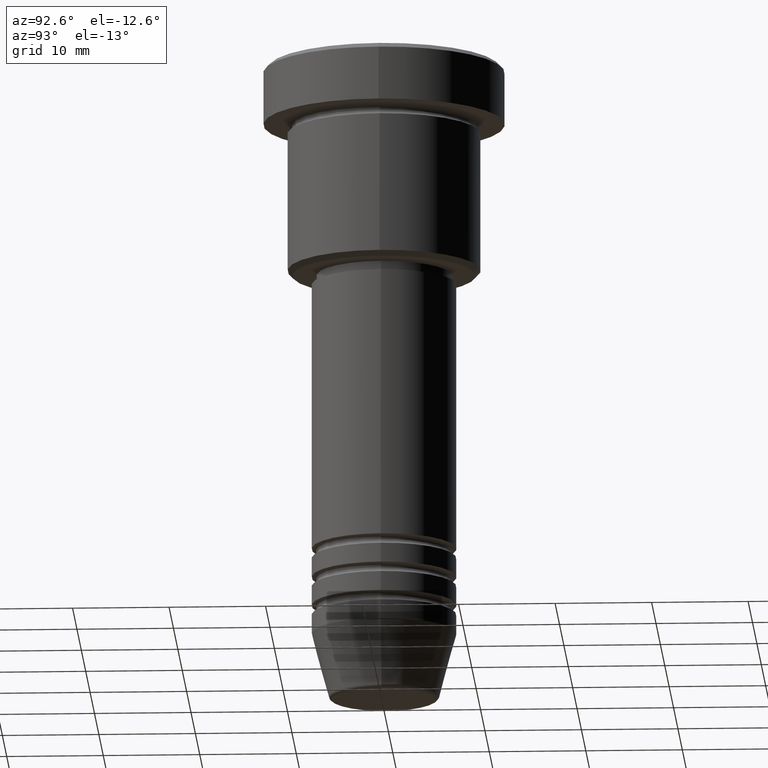
[diagram: clean part render]
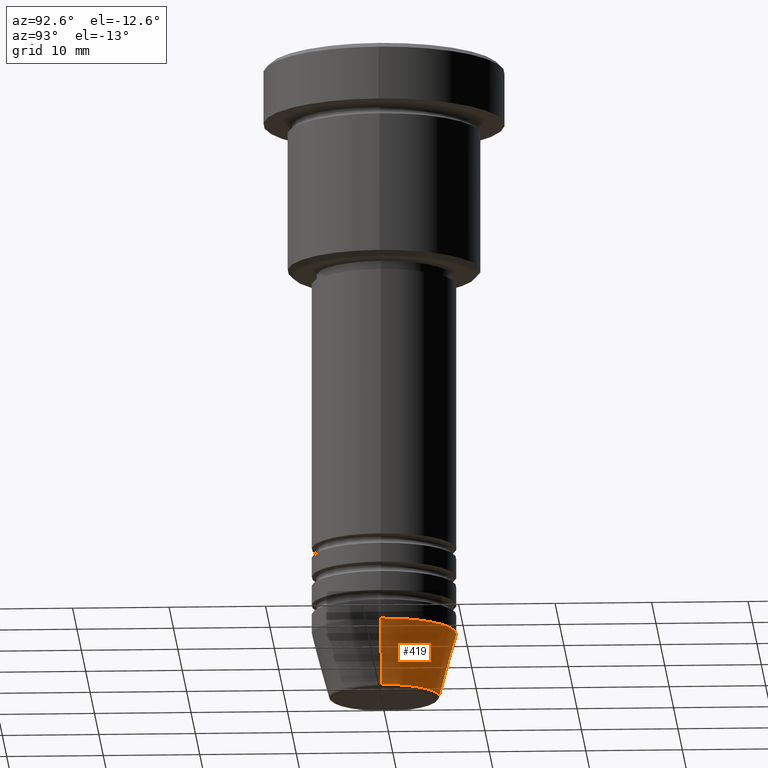
[diagram: same view with one face highlighted and labeled with its STEP entity id]
A machine part, auxiliary view. The second image highlights one B-rep face of the part: STEP entity #419.
In plain terms, the highlighted conical surface has half-angle 15 deg.
Its self-contained STEP definition (entity closure, byte-faithful):
#102 = VERTEX_POINT ( 'NONE', #272 ) ;
#111 = EDGE_CURVE ( 'NONE', #928, #102, #176, .T. ) ;
#117 = AXIS2_PLACEMENT_3D ( 'NONE', #708, #541, #256 ) ;
#123 = EDGE_CURVE ( 'NONE', #581, #1066, #991, .T. ) ;
#175 = ORIENTED_EDGE ( 'NONE', *, *, #111, .F. ) ;
#176 = LINE ( 'NONE', #556, #712 ) ;
#182 = ORIENTED_EDGE ( 'NONE', *, *, #123, .T. ) ;
#235 = CIRCLE ( 'NONE', #907, 7.500000000000000000 ) ;
#256 = DIRECTION ( 'NONE',  ( 1.000000000000000000, 0.000000000000000000, 0.000000000000000000 ) ) ;
#263 = CARTESIAN_POINT ( 'NONE',  ( -7.500000000000000000, 9.184850993605147944E-16, -60.00000000000000000 ) ) ;
#272 = CARTESIAN_POINT ( 'NONE',  ( 7.500000000000000000, 0.000000000000000000, -60.00000000000000000 ) ) ;
#282 = ORIENTED_EDGE ( 'NONE', *, *, #676, .F. ) ;
#289 = CARTESIAN_POINT ( 'NONE',  ( 0.000000000000000000, 0.000000000000000000, -60.00000000000000000 ) ) ;
#374 = DIRECTION ( 'NONE',  ( -0.000000000000000000, -0.000000000000000000, 1.000000000000000000 ) ) ;
#419 = ADVANCED_FACE ( 'NONE', ( #609 ), #848, .T. ) ;
#434 = AXIS2_PLACEMENT_3D ( 'NONE', #774, #875, #952 ) ;
#495 = DIRECTION ( 'NONE',  ( 1.000000000000000000, 0.000000000000000000, 0.000000000000000000 ) ) ;
#541 = DIRECTION ( 'NONE',  ( -0.000000000000000000, -0.000000000000000000, 1.000000000000000000 ) ) ;
#556 = CARTESIAN_POINT ( 'NONE',  ( 7.500000000000000000, 0.000000000000000000, -60.00000000000000000 ) ) ;
#564 = DIRECTION ( 'NONE',  ( 0.2588190451025213501, 0.000000000000000000, 0.9659258262890680902 ) ) ;
#581 = VERTEX_POINT ( 'NONE', #905 ) ;
#609 = FACE_OUTER_BOUND ( 'NONE', #815, .T. ) ;
#619 = CARTESIAN_POINT ( 'NONE',  ( 5.723655072137191269, 0.000000000000000000, -66.62940952255127058 ) ) ;
#646 = CARTESIAN_POINT ( 'NONE',  ( -7.500000000000000000, 9.184850993605147944E-16, -60.00000000000000000 ) ) ;
#676 = EDGE_CURVE ( 'NONE', #102, #1066, #235, .T. ) ;
#708 = CARTESIAN_POINT ( 'NONE',  ( 0.000000000000000000, 0.000000000000000000, -66.62940952255127058 ) ) ;
#712 = VECTOR ( 'NONE', #564, 1000.000000000000000 ) ;
#774 = CARTESIAN_POINT ( 'NONE',  ( 0.000000000000000000, 0.000000000000000000, -60.00000000000000000 ) ) ;
#815 = EDGE_LOOP ( 'NONE', ( #1132, #182, #282, #175 ) ) ;
#823 = DIRECTION ( 'NONE',  ( -0.2588190451025213501, 3.169619151431772337E-17, 0.9659258262890680902 ) ) ;
#848 = CONICAL_SURFACE ( 'NONE', #434, 7.500000000000000000, 0.2617993877991500740 ) ;
#875 = DIRECTION ( 'NONE',  ( -0.000000000000000000, -0.000000000000000000, 1.000000000000000000 ) ) ;
#905 = CARTESIAN_POINT ( 'NONE',  ( -5.723655072137190380, 8.097153428560735915E-16, -66.62940952255127058 ) ) ;
#907 = AXIS2_PLACEMENT_3D ( 'NONE', #289, #374, #495 ) ;
#928 = VERTEX_POINT ( 'NONE', #619 ) ;
#952 = DIRECTION ( 'NONE',  ( 1.000000000000000000, 0.000000000000000000, 0.000000000000000000 ) ) ;
#991 = LINE ( 'NONE', #646, #1156 ) ;
#1022 = EDGE_CURVE ( 'NONE', #928, #581, #1131, .T. ) ;
#1066 = VERTEX_POINT ( 'NONE', #263 ) ;
#1131 = CIRCLE ( 'NONE', #117, 5.723655072137191269 ) ;
#1132 = ORIENTED_EDGE ( 'NONE', *, *, #1022, .T. ) ;
#1156 = VECTOR ( 'NONE', #823, 1000.000000000000000 ) ;